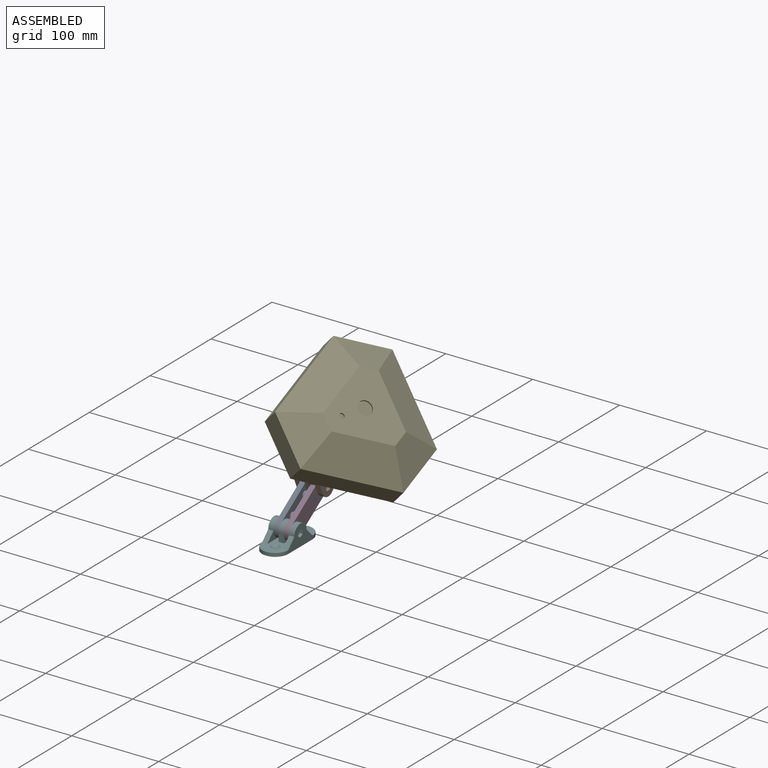
[diagram: assembled view]
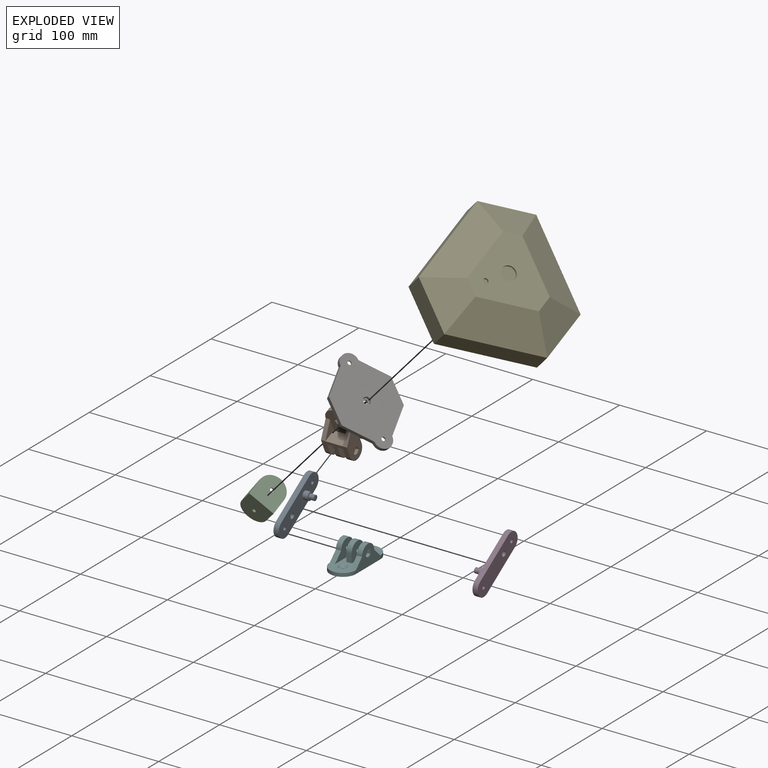
[diagram: exploded view]
GUIDED TOUR — MATED ASSEMBLY (Onshape document fa6d0e639f6bc2dec555273f, AutoMate assembly fa6d0e639f6bc2dec555273f_6333b8d87320efc4c92305af_243793bdfb9e367a1a66ee72_default)

This assembly has 7 components, labeled P0..P6 below (a component is one placed occurrence of a part; the same part can appear more than once), held together by 7 mates. A mate is a constraint between two components; its type names the relative motion it leaves free:
  FASTENED — locks the two components together rigidly (no relative motion),
  REVOLUTE — leaves rotation about the listed axis free (a hinge).
Axis/direction vectors are unit vectors and 'through' points are millimeter coordinates, both in the assembly's world frame.

MATES
  1. FASTENED "Fastened 1": P0 <-> P3, direction (1.000, 0.000, 0.000) through (84.00, 23.21, 36.29) mm
  2. REVOLUTE "Revolute 2": P0 <-> P1, axis (-1.000, 0.000, 0.000) through (66.00, 35.67, 44.65) mm
  3. REVOLUTE "Revolute 1": P3 <-> P5, axis (1.000, 0.000, 0.000) through (84.00, -10.00, 14.00) mm
  4. REVOLUTE "Revolute 3": P1 <-> P2, axis (0.000, 0.915, 0.404) through (75.00, 33.11, 75.22) mm
  5. REVOLUTE "Revolute 4": P2 <-> P6, axis (0.668, -0.300, 0.681) through (87.69, 44.79, 95.83) mm
  6. REVOLUTE "Revolute 5": P4 <-> P6, axis (-0.668, 0.300, -0.681) through (65.06, 51.79, 128.45) mm
  7. REVOLUTE "Revolute 6": P4 <-> P6, axis (-0.668, 0.300, -0.681) through (116.63, 33.86, 69.97) mm

ASSEMBLY ORDER
  1. P0 — the base component [order heuristic]
  2. P1 [order verified]
  3. P5 — core [order heuristic]
  4. P3 — core [order heuristic]
  5. P2 [order verified]
  6. P6 [order verified]
  7. P4 [order verified]
Order-tag legend:
  [order verified] — this step's position reverses a verified removal order: the component was checked to insert without passing through the ones already placed.
  [order heuristic] — the first 3 components form the assembly's core: parts whose collision-free extraction could not be verified, listed in mate-graph order.

Of the 7 components, 1 carries the full construction recipe — the FeatureScript program that regenerates the part's solid from scratch; the rest are supplied as boundary geometry only.
Each toured component is shown spotlighted twice — in the assembled view, then in the exploded view, where a leader line traces a displaced component back to its assembled socket (saturated green if recipe-attached, orange if geometry-only; every other component desaturated gray) — followed by its recipe or geometry summary and the mates that hold it.
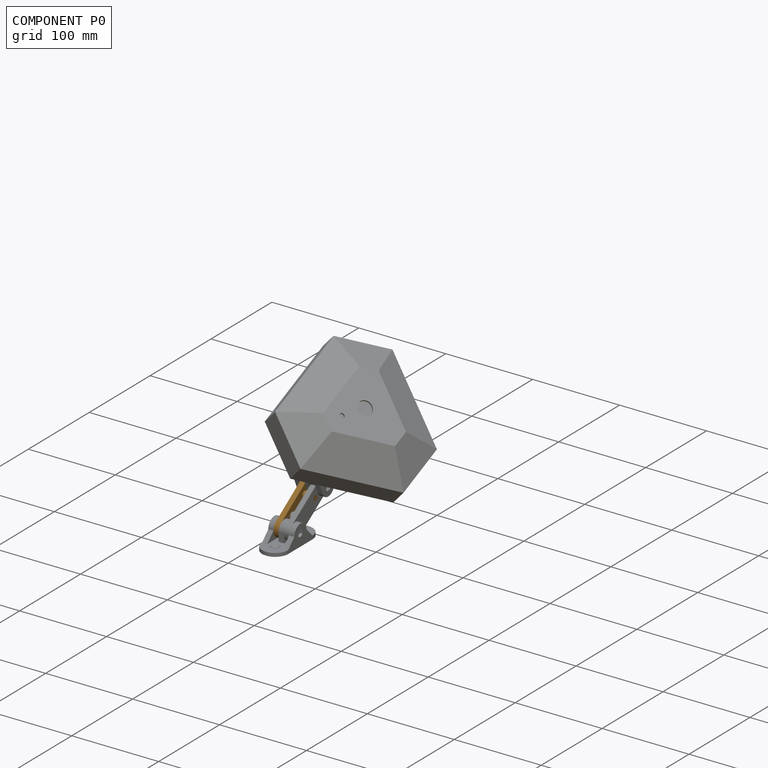
[diagram: component P0 — assembled]
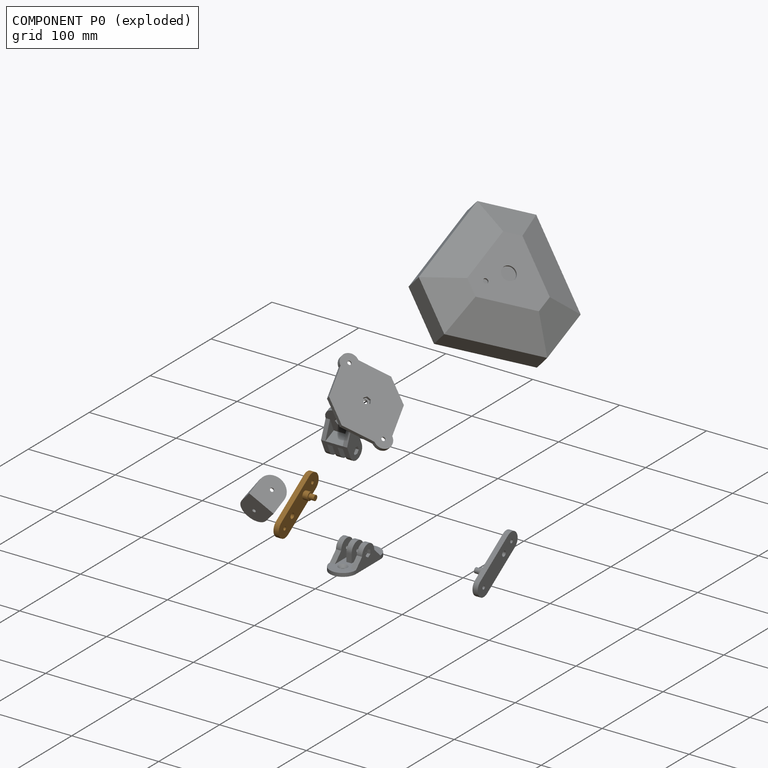
[diagram: component P0 — exploded]
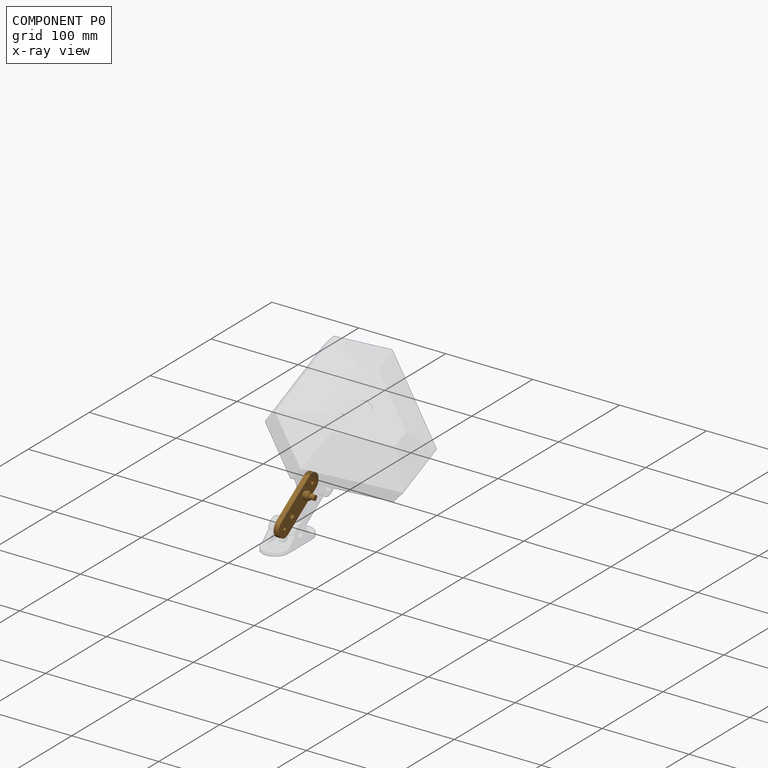
[diagram: component P0 — x-ray view]
COMPONENT P0 — geometry summary (no construction recipe available for this part):
  bounding box: 75.0 x 20.0 x 18.0 mm
  B-rep topology: 1 solid, 13 faces, 60 edges
  volume: 8700 mm^3 (32% of its bounding box)
  symmetry: mirror-symmetric across its y mid-plane
Held by: FASTENED mate "Fastened 1" to P3; REVOLUTE mate "Revolute 2" to P1.
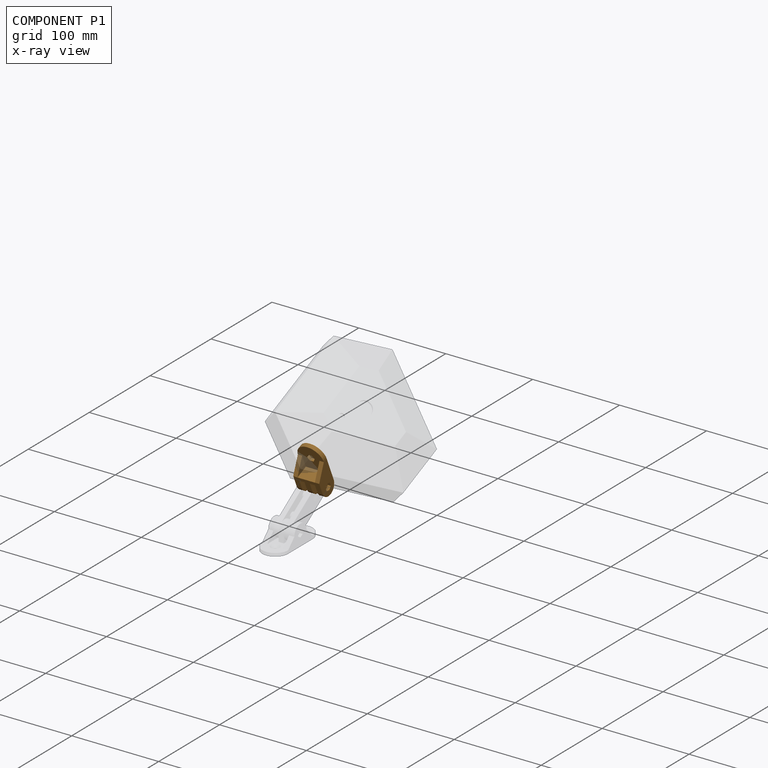
[diagram: component P1 — x-ray view]
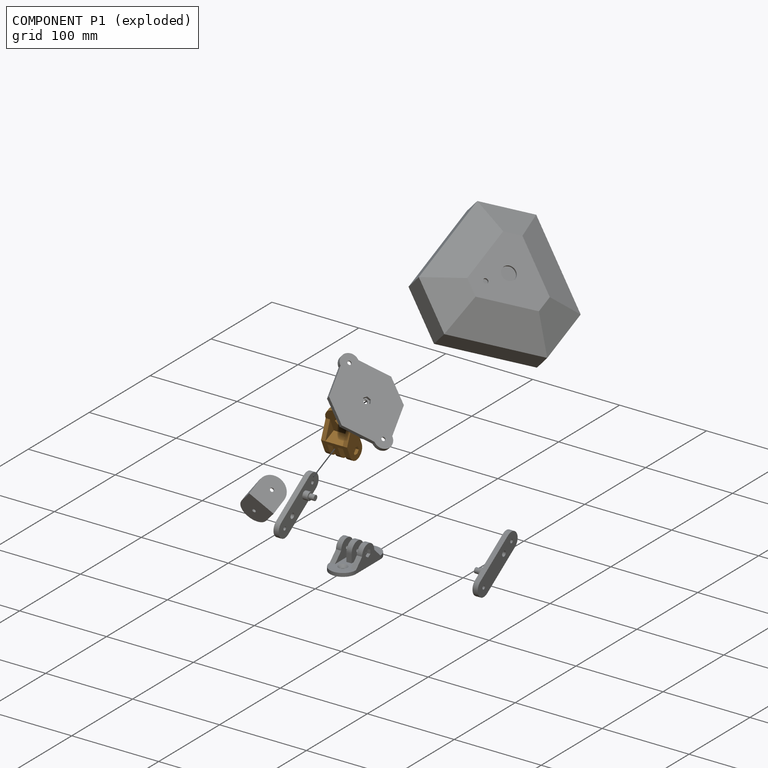
[diagram: component P1 — exploded]
COMPONENT P1 — geometry summary (no construction recipe available for this part):
  bounding box: 54.0 x 30.0 x 20.0 mm
  B-rep topology: 1 solid, 40 faces, 204 edges
  volume: 13289 mm^3 (41% of its bounding box)
Held by: REVOLUTE mate "Revolute 2" to P0; REVOLUTE mate "Revolute 3" to P2.
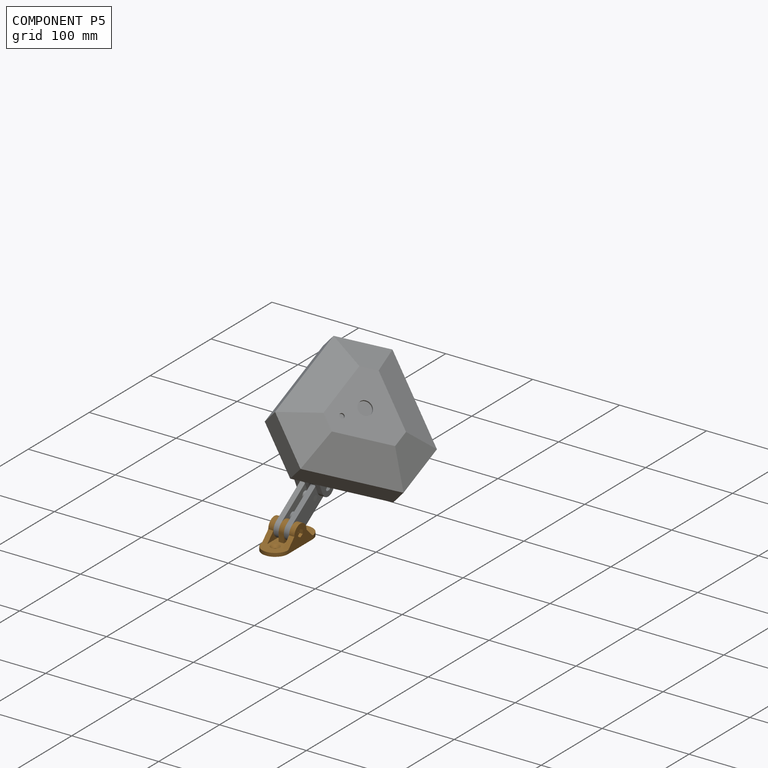
[diagram: component P5 — assembled]
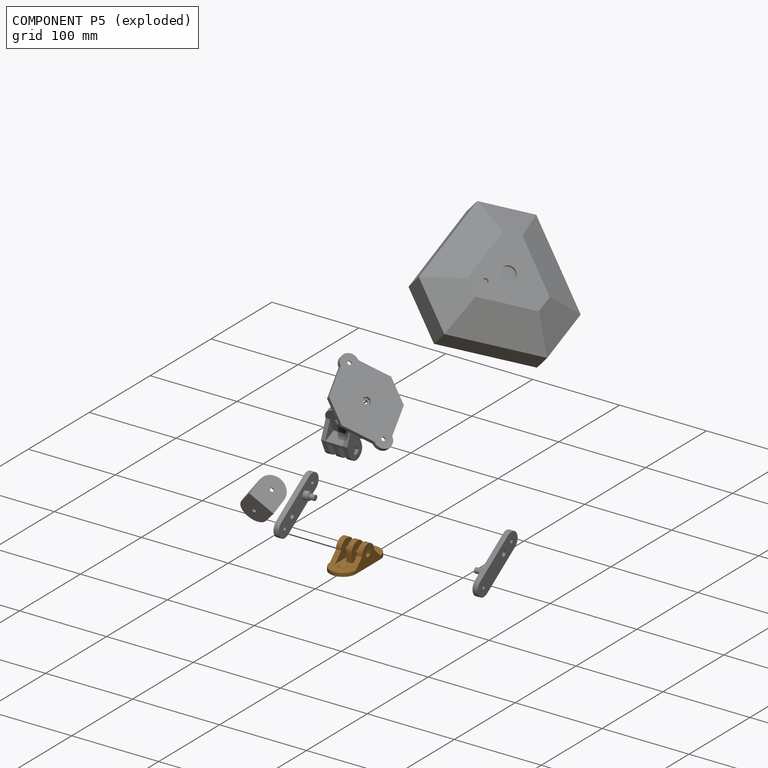
[diagram: component P5 — exploded]
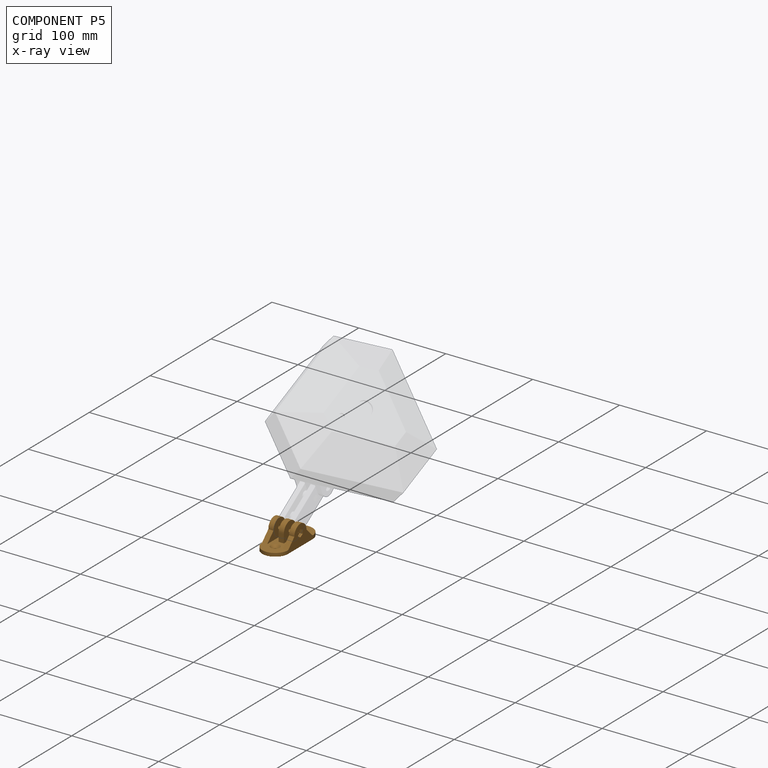
[diagram: component P5 — x-ray view]
COMPONENT P5 — geometry summary (no construction recipe available for this part):
  bounding box: 70.0 x 30.0 x 24.0 mm
  B-rep topology: 1 solid, 35 faces, 170 edges
  volume: 14459 mm^3 (29% of its bounding box)
  symmetry: mirror-symmetric across its y mid-plane
Held by: REVOLUTE mate "Revolute 1" to P3.
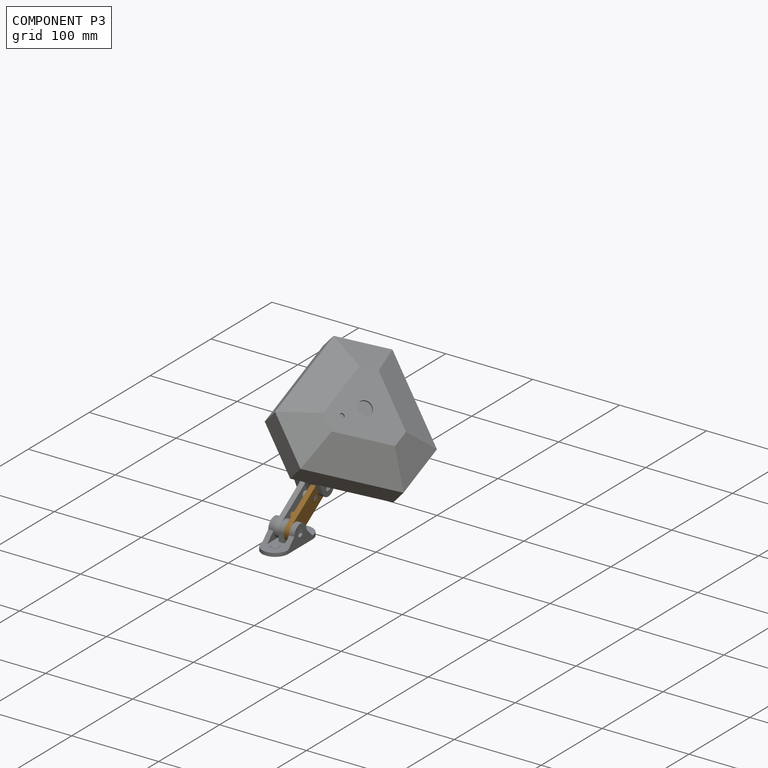
[diagram: component P3 — assembled]
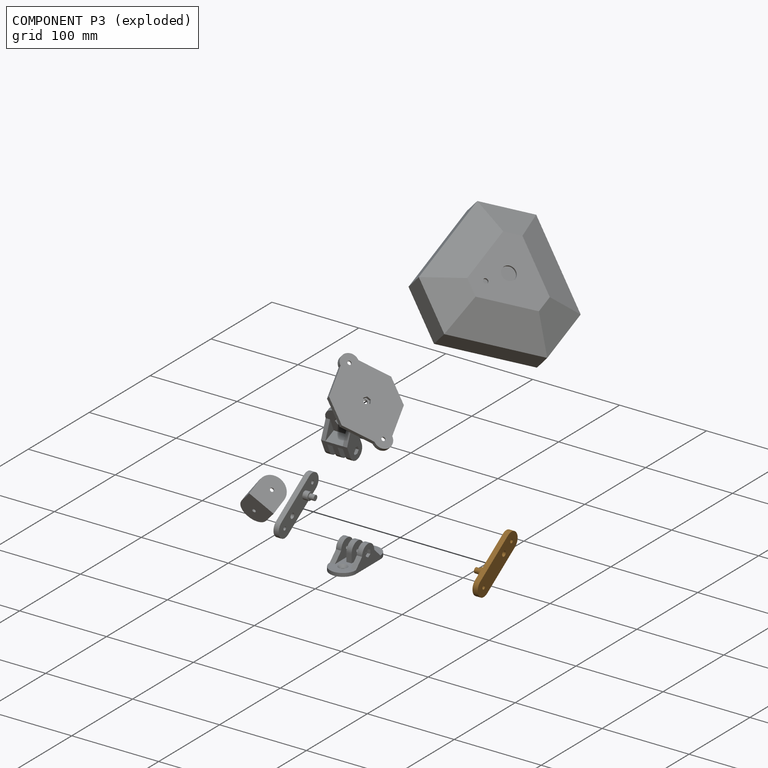
[diagram: component P3 — exploded]
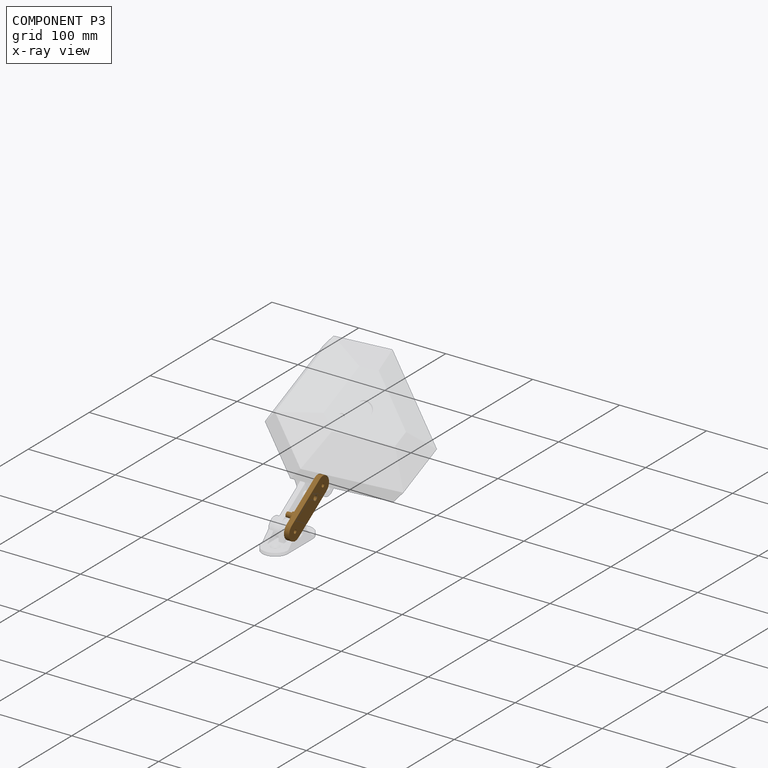
[diagram: component P3 — x-ray view]
COMPONENT P3 — geometry summary (no construction recipe available for this part):
  bounding box: 75.0 x 20.0 x 18.0 mm
  B-rep topology: 1 solid, 13 faces, 54 edges
  volume: 8700 mm^3 (32% of its bounding box)
  symmetry: mirror-symmetric across its y mid-plane
Held by: FASTENED mate "Fastened 1" to P0; REVOLUTE mate "Revolute 1" to P5.
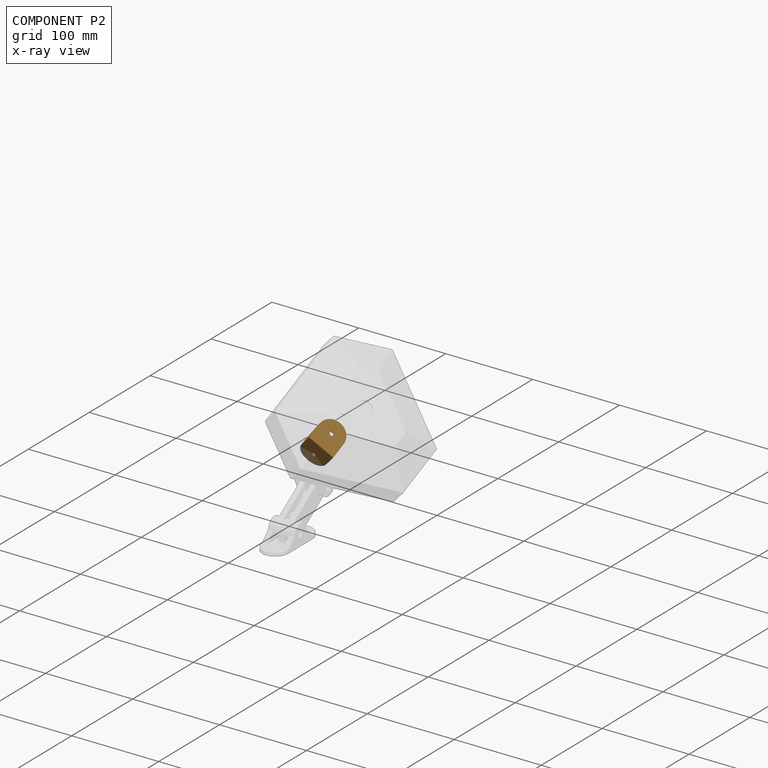
[diagram: component P2 — x-ray view]
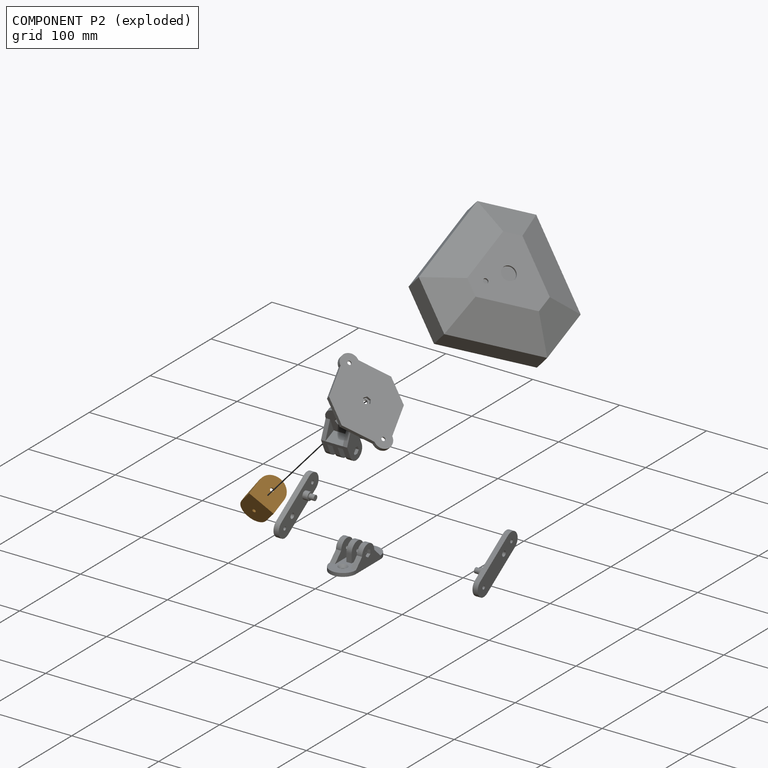
[diagram: component P2 — exploded]
COMPONENT P2 — geometry summary (no construction recipe available for this part):
  bounding box: 34.0 x 34.0 x 30.0 mm
  B-rep topology: 1 solid, 18 faces, 76 edges
  volume: 9089 mm^3 (26% of its bounding box)
  symmetry: mirror-symmetric across its x mid-plane
Held by: REVOLUTE mate "Revolute 3" to P1; REVOLUTE mate "Revolute 4" to P6.
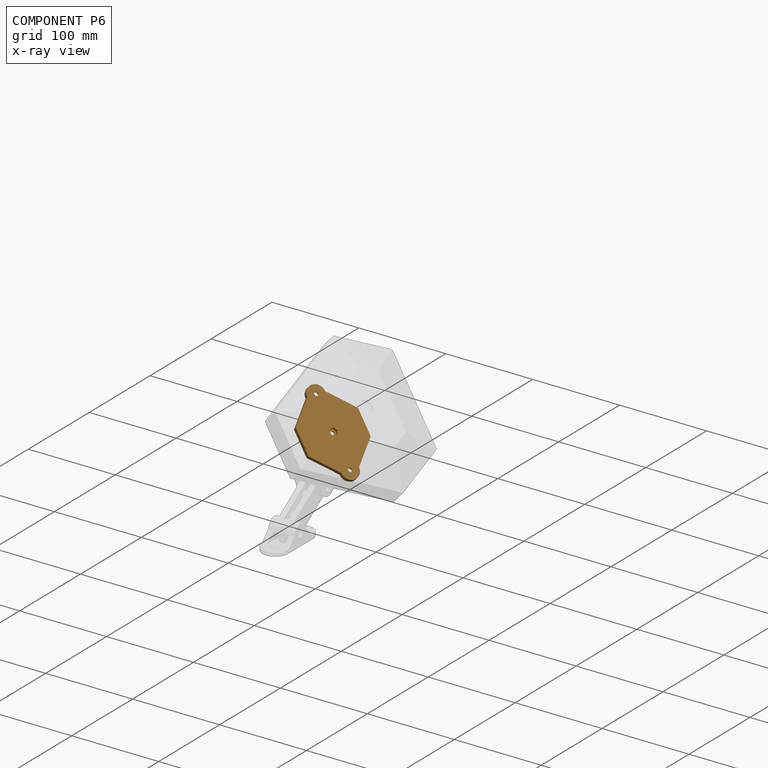
[diagram: component P6 — x-ray view]
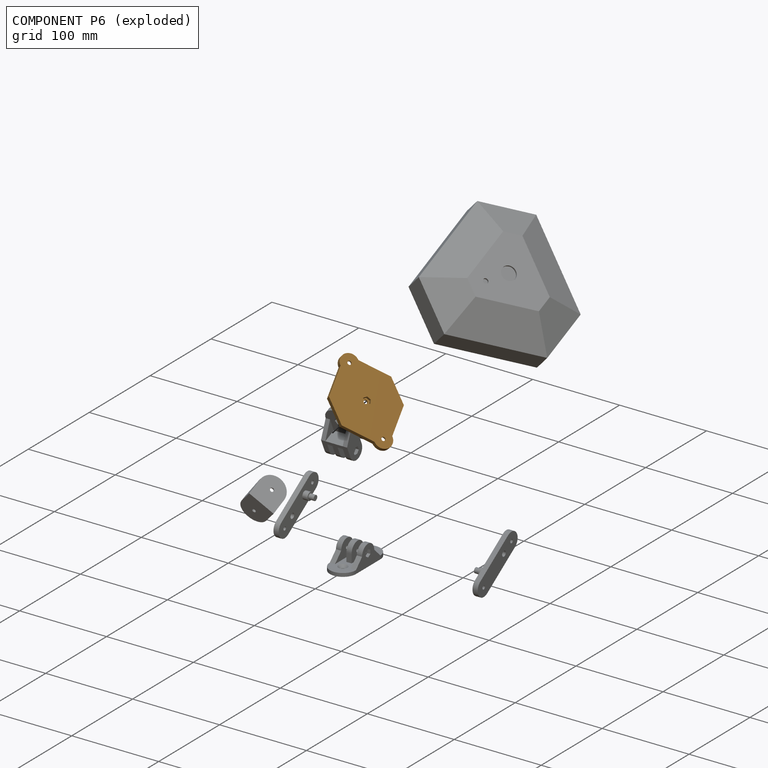
[diagram: component P6 — exploded]
COMPONENT P6 — geometry summary (no construction recipe available for this part):
  bounding box: 100.0 x 70.0 x 5.0 mm
  B-rep topology: 1 solid, 34 faces, 174 edges
  volume: 22751 mm^3 (65% of its bounding box)
  symmetry: mirror-symmetric across its x mid-plane
Held by: REVOLUTE mate "Revolute 4" to P2; REVOLUTE mate "Revolute 5" to P4; REVOLUTE mate "Revolute 6" to P4.
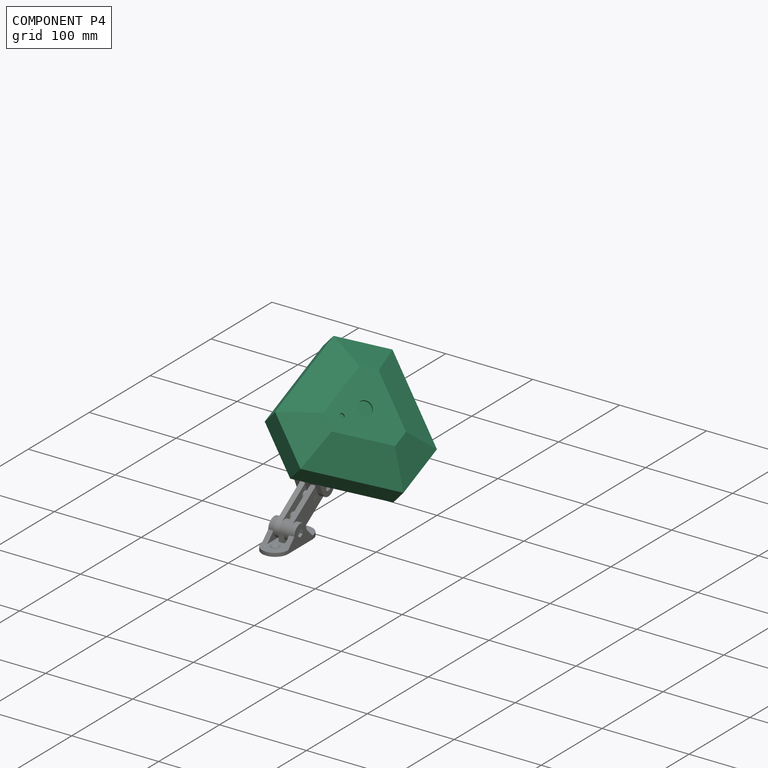
[diagram: component P4 — assembled]
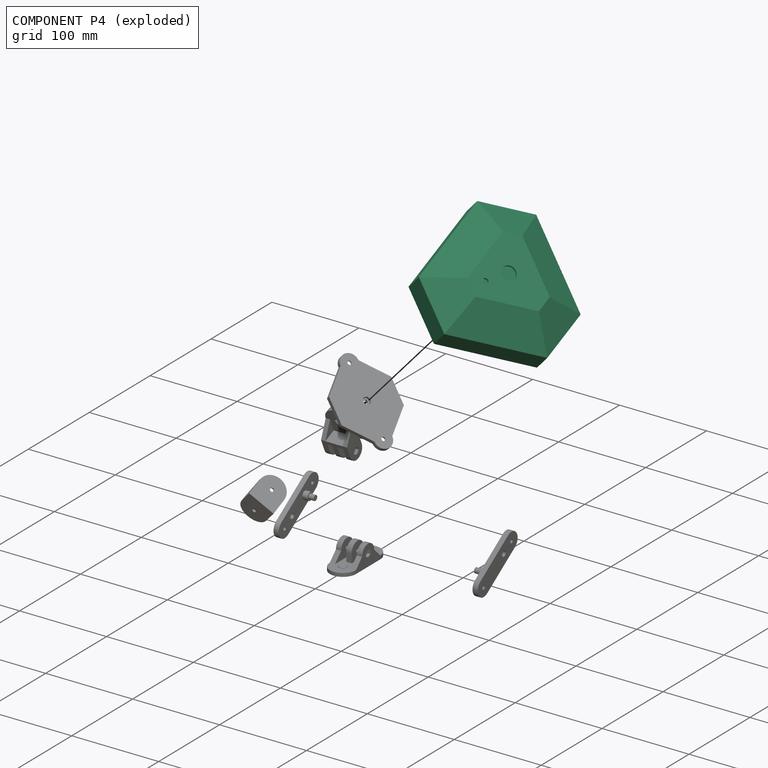
[diagram: component P4 — exploded]
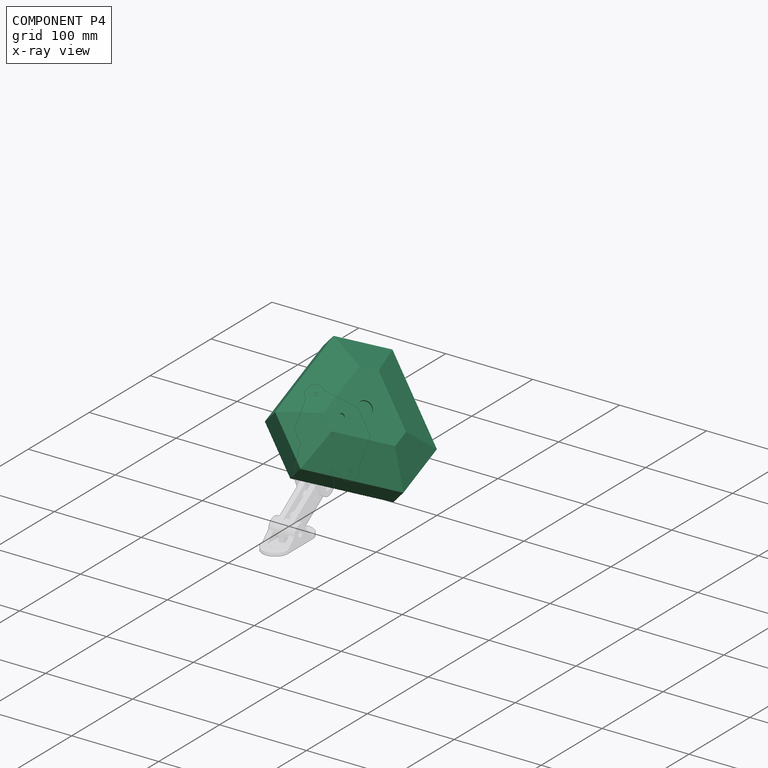
[diagram: component P4 — x-ray view]
COMPONENT P4 — recipe-attached (CADFS 00783102, mesh-verified: the recipe's output STEP matches this component's geometry to below the mesh-comparison resolution (tessellation chordal tolerance ~0.339 mm)).
Held by: REVOLUTE mate "Revolute 5" to P6; REVOLUTE mate "Revolute 6" to P6.
Construction recipe (FeatureScript — the CAD program that rebuilds this solid; sketch coordinates are in the units given by the * unit suffixes, e.g. mm):

FeatureScript 1511;
import(path : "onshape/std/geometry.fs", version : "1511.0");
import(path : "onshape/std/common.fs", version : "1511.0");
const mm = millimeter;
const VERTEX = EntityType.VERTEX;
const EDGE = EntityType.EDGE;
const FACE = EntityType.FACE;
const BODY = EntityType.BODY;
function v(x, y){return vector(x, y);}
function OD(order){return orderDisambiguation(order);}
function OSD(set){return originalSetDisambiguation(set);}
function TD(topology){return topologyDisambiguation(topology);}
function TDD(query){return trueDependencyDisambiguation(query);}
function sQuery(a, b, c) {return sketchEntityQuery(a, b, c);}

annotation { "Feature Type Name" : "Feature", "Feature Type Description" : "" }
export const myFeature = defineFeature(function(context is Context, id is Id, definition is map)
    precondition{}
    {
        {
            var Q0;
            Q0=qCreatedBy(makeId("Top.planeOp"),FACE);
            var sketch = newSketch(context, id + "F0", { "sketchPlane" : qUnion([Q0])});
            skCircle(sketch, "E0.cCircle", {"center": v(0, 0) * mm, "radius": 64.95 * mm, "construction": true});
            skLineSegment(sketch, "E0.0", {"start": v(129.7, 7.33) * mm, "end": v(-58.5, -115.99) * mm});
            skLineSegment(sketch, "E0.1", {"start": v(-58.5, -115.99) * mm, "end": v(-71.2, 108.66) * mm});
            skLineSegment(sketch, "E0.2", {"start": v(-71.2, 108.66) * mm, "end": v(129.7, 7.33) * mm});
            skPoint(sketch, "E0.0.midPoint", {"position": v(35.6, -54.33) * mm});
            skPoint(sketch, "E1", {"position": v(-17.63, 81.64) * mm});
            skPoint(sketch, "E2", {"position": v(-67.81, 48.75) * mm});
            skPoint(sketch, "E3", {"position": v(-61.9, -55.99) * mm});
            skPoint(sketch, "E4", {"position": v(-8.31, -83.1) * mm});
            skPoint(sketch, "E5", {"position": v(79.51, -25.55) * mm});
            skPoint(sketch, "E6", {"position": v(76.13, 34.35) * mm});
            skLineSegment(sketch, "E7", {"start": v(-61.9, -55.99) * mm, "end": v(-8.31, -83.1) * mm});
            skLineSegment(sketch, "E8", {"start": v(79.51, -25.55) * mm, "end": v(76.13, 34.35) * mm});
            skLineSegment(sketch, "E9", {"start": v(-17.63, 81.64) * mm, "end": v(-67.81, 48.75) * mm});
            skSolve(sketch);
        }
        {
            var Q0;
            {var subQ3=sQuery(id+"F0.wireOp",EDGE,"E7");Q0=makeQuery(id+"F0.imprint","IMPRINT",FACE,{"disambiguationData":[TD([[makeQuery(id+"F0.imprint","IMPRINT",EDGE,{"derivedFrom":subQ3}),1.0]])]});}
            extrude(context, id + "F1", {"entities" : qUnion([Q0]), "depth" : 48 * mm, "offsetDistance" : 25 * mm});
        }
        {
            var Q0;
            Q0=makeQuery(id+"F1.opExtrude","CAP_FACE",FACE,{"disambiguationData":[OSD([sQuery(id+"F0.wireOp",EDGE,"E0.0"),sQuery(id+"F0.wireOp",EDGE,"E0.1"),sQuery(id+"F0.wireOp",EDGE,"E0.2"),sQuery(id+"F0.wireOp",EDGE,"E7"),sQuery(id+"F0.wireOp",EDGE,"E8"),sQuery(id+"F0.wireOp",EDGE,"E9")])],"isStart":false});
            chamfer(context, id + "F2", {"entities" : qUnion([Q0]), "chamferType" : ChamferType.TWO_OFFSETS, "width1" : 22 * mm, "oppositeDirection" : false, "width2" : 35 * mm, "tangentPropagation" : true});
        }
        {
            var Q0;
            Q0=makeQuery(id+"F1.opExtrude","CAP_FACE",FACE,{"disambiguationData":[OSD([sQuery(id+"F0.wireOp",EDGE,"E0.0"),sQuery(id+"F0.wireOp",EDGE,"E0.1"),sQuery(id+"F0.wireOp",EDGE,"E0.2"),sQuery(id+"F0.wireOp",EDGE,"E7"),sQuery(id+"F0.wireOp",EDGE,"E8"),sQuery(id+"F0.wireOp",EDGE,"E9")])],"isStart":false});
            var sketch = newSketch(context, id + "F3", { "sketchPlane" : qUnion([Q0])});
            skCircle(sketch, "E10", {"center": v(0, -1.66) * mm, "radius": 8 * mm});
            skPoint(sketch, "E10.centerSnap0", {"position": v(-29.9, -1.66) * mm});
            skSolve(sketch);
        }
        {
            var Q0;
            Q0 = qSketchRegion(id + "F3", true);
            extrude(context, id + "F4", {"entities" : qUnion([Q0]), "operationType" : NewBodyOperationType.REMOVE, "oppositeDirection" : true, "depth" : 2 * mm, "offsetDistance" : 25 * mm});
        }
        {
            var Q0;
            Q0=makeQuery(id+"F1.opExtrude","CAP_FACE",FACE,{"disambiguationData":[OSD([sQuery(id+"F0.wireOp",EDGE,"E0.0"),sQuery(id+"F0.wireOp",EDGE,"E0.1"),sQuery(id+"F0.wireOp",EDGE,"E0.2"),sQuery(id+"F0.wireOp",EDGE,"E7"),sQuery(id+"F0.wireOp",EDGE,"E8"),sQuery(id+"F0.wireOp",EDGE,"E9")])],"isStart":true});
            var sketch = newSketch(context, id + "F5", { "sketchPlane" : qUnion([Q0])});
            skLineSegment(sketch, "E11", {"start": v(18.77, 65.36) * mm, "end": v(11.28, -67.06) * mm, "construction": true});
            skPoint(sketch, "E12", {"position": v(15.02, -0.85) * mm});
            skCircle(sketch, "E13", {"center": v(17.28, 39.09) * mm, "radius": 2.1 * mm});
            skCircle(sketch, "E14", {"center": v(12.77, -40.79) * mm, "radius": 2.1 * mm});
            skSolve(sketch);
        }
        {
            var Q0;
            Q0 = qSketchRegion(id + "F5", true);
            extrude(context, id + "F6", {"entities" : qUnion([Q0]), "operationType" : NewBodyOperationType.REMOVE, "oppositeDirection" : true, "depth" : 5 * mm, "offsetDistance" : 25 * mm});
        }
        {
            var Q0;
            Q0=makeQuery(id+"F1.opExtrude","SWEPT_FACE",FACE,{"disambiguationData":[OSD([sQuery(id+"F0.wireOp",EDGE,"E0.1")])]});
            var sketch = newSketch(context, id + "F7", { "sketchPlane" : qUnion([Q0])});
            skLineSegment(sketch, "E15.bottom", {"start": v(20.5, 0) * mm, "end": v(-19.5, 0) * mm});
            skLineSegment(sketch, "E15.top", {"start": v(20.5, 15) * mm, "end": v(-19.5, 15) * mm});
            skLineSegment(sketch, "E15.left", {"start": v(20.5, 0) * mm, "end": v(20.5, 15) * mm});
            skLineSegment(sketch, "E15.right", {"start": v(-19.5, 0) * mm, "end": v(-19.5, 15) * mm});
            skSolve(sketch);
        }
        {
            var Q0;
            Q0 = qSketchRegion(id + "F7", true);
            extrude(context, id + "F8", {"entities" : qUnion([Q0]), "operationType" : NewBodyOperationType.REMOVE, "oppositeDirection" : true, "depth" : 15 * mm, "offsetDistance" : 25 * mm});
        }
        {
            var Q0;
            Q0=makeQuery(id+"F1.opExtrude","CAP_FACE",FACE,{"disambiguationData":[OSD([sQuery(id+"F0.wireOp",EDGE,"E0.0"),sQuery(id+"F0.wireOp",EDGE,"E0.1"),sQuery(id+"F0.wireOp",EDGE,"E0.2"),sQuery(id+"F0.wireOp",EDGE,"E7"),sQuery(id+"F0.wireOp",EDGE,"E8"),sQuery(id+"F0.wireOp",EDGE,"E9")])],"isStart":false});
            var sketch = newSketch(context, id + "F9", { "sketchPlane" : qUnion([Q0])});
            skCircle(sketch, "E16", {"center": v(26.16, 0) * mm, "radius": 2.85 * mm});
            skSolve(sketch);
        }
        {
            var Q0;
            Q0 = qSketchRegion(id + "F9", true);
            extrude(context, id + "F10", {"entities" : qUnion([Q0]), "operationType" : NewBodyOperationType.REMOVE, "oppositeDirection" : true, "depth" : 2 * mm, "offsetDistance" : 25 * mm});
        }
    });
PROVENANCE & LICENSES
Assembly (occurrences, transforms, mates, per-part STEP geometry): AutoMate dataset, Zenodo record 7776208, CC0.
Construction recipes: CADFS (HuggingFace VladPyatov/CADFS, CC-BY-4.0, layered over the ABC dataset), FeatureScript reconstruction programs keyed by ABC model id.
Join: ABC meta listings map ABC model id -> Onshape documentId; within a shared document, parts are matched by geometric signature (bounding-box dims + volume at 0.1% relative tolerance, exact B-rep face/solid counts).
Verification: 1 of this assembly's 7 components carries a recipe attachment, and every attachment is mesh-verified: the CADFS STEP and the AutoMate member STEP were compared as meshes in their shared local frame (symmetric sampled-point-to-mesh distance); worst across the 1 attachment: below the mesh-comparison resolution (tessellation chordal tolerance ~0.339 mm) on a 226 mm part.
Renders: orthographic iso camera (az 35 / el 25); the floor grid conveys scale (grid pitch printed in each image; no ruler). In the exploded view each component is displaced by its stored offset vector: the offsets alone carry the explosion direction (mate normal/axis signs are not orientation cues and do not encode it), and separation distances are assigned per mate-chain, not proportionally to assembly-order depth.
